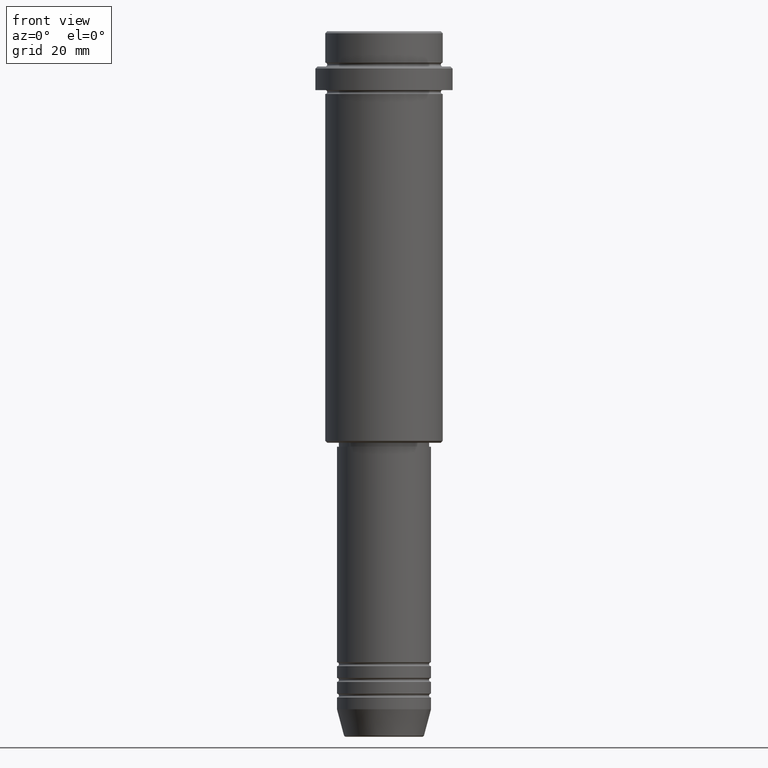
[diagram: clean part render]
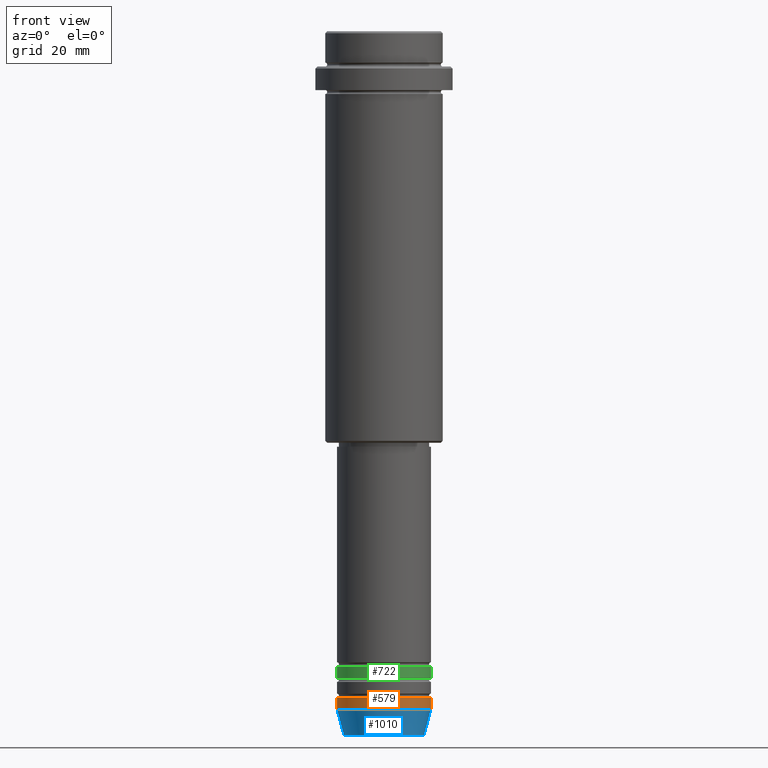
[diagram: same view with three faces highlighted in distinct colors, each labeled with its STEP entity id]
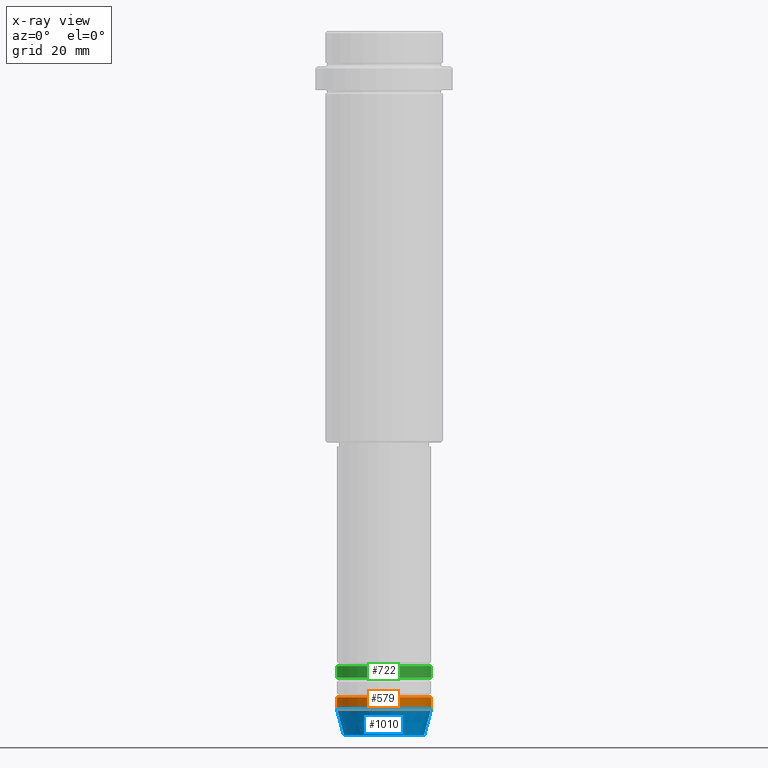
[diagram: x-ray of the same camera — body ghosted, the three highlighted faces saturated]
A machine part, front view with three faces highlighted in distinct colors.
The next image is the same camera in x-ray (body ghosted, the three faces saturated) — at least one of them is partly hidden behind the body in this view.
Their STEP definitions:

[orange] entity #579 — the highlighted cylindrical surface (partial cylindrical patch) has radius 12 mm, axis along (-0, -0, 1).
#37 = DIRECTION ( 'NONE',  ( 1.000000000000000000, 0.000000000000000000, 0.000000000000000000 ) ) ;
#110 = AXIS2_PLACEMENT_3D ( 'NONE', #1078, #1275, #1398 ) ;
#170 = CARTESIAN_POINT ( 'NONE',  ( -12.00000000000000000, 1.469576158976823947E-15, -173.0000000000000284 ) ) ;
#177 = VECTOR ( 'NONE', #1208, 1000.000000000000000 ) ;
#179 = AXIS2_PLACEMENT_3D ( 'NONE', #344, #903, #37 ) ;
#182 = EDGE_CURVE ( 'NONE', #453, #1155, #323, .T. ) ;
#241 = ORIENTED_EDGE ( 'NONE', *, *, #1254, .F. ) ;
#313 = CARTESIAN_POINT ( 'NONE',  ( -12.00000000000000000, 1.469576158976823947E-15, -170.0000000000000000 ) ) ;
#323 = LINE ( 'NONE', #891, #177 ) ;
#325 = EDGE_LOOP ( 'NONE', ( #742, #837, #1383, #241 ) ) ;
#344 = CARTESIAN_POINT ( 'NONE',  ( 0.000000000000000000, 0.000000000000000000, -173.0000000000000284 ) ) ;
#351 = AXIS2_PLACEMENT_3D ( 'NONE', #592, #455, #377 ) ;
#377 = DIRECTION ( 'NONE',  ( 1.000000000000000000, 0.000000000000000000, 0.000000000000000000 ) ) ;
#383 = CARTESIAN_POINT ( 'NONE',  ( -12.00000000000000000, 1.469576158976823947E-15, 0.000000000000000000 ) ) ;
#437 = VERTEX_POINT ( 'NONE', #170 ) ;
#453 = VERTEX_POINT ( 'NONE', #683 ) ;
#455 = DIRECTION ( 'NONE',  ( -0.000000000000000000, -0.000000000000000000, 1.000000000000000000 ) ) ;
#579 = ADVANCED_FACE ( 'NONE', ( #1260 ), #1182, .T. ) ;
#592 = CARTESIAN_POINT ( 'NONE',  ( 0.000000000000000000, 0.000000000000000000, -170.0000000000000000 ) ) ;
#605 = DIRECTION ( 'NONE',  ( -0.000000000000000000, -0.000000000000000000, 1.000000000000000000 ) ) ;
#641 = VECTOR ( 'NONE', #605, 1000.000000000000000 ) ;
#683 = CARTESIAN_POINT ( 'NONE',  ( 12.00000000000000000, 0.000000000000000000, -173.0000000000000284 ) ) ;
#714 = CIRCLE ( 'NONE', #351, 12.00000000000000000 ) ;
#742 = ORIENTED_EDGE ( 'NONE', *, *, #996, .F. ) ;
#774 = EDGE_CURVE ( 'NONE', #437, #453, #1412, .T. ) ;
#837 = ORIENTED_EDGE ( 'NONE', *, *, #774, .T. ) ;
#891 = CARTESIAN_POINT ( 'NONE',  ( 12.00000000000000000, 0.000000000000000000, 0.000000000000000000 ) ) ;
#903 = DIRECTION ( 'NONE',  ( -0.000000000000000000, -0.000000000000000000, 1.000000000000000000 ) ) ;
#928 = LINE ( 'NONE', #383, #641 ) ;
#996 = EDGE_CURVE ( 'NONE', #437, #1050, #928, .T. ) ;
#1050 = VERTEX_POINT ( 'NONE', #313 ) ;
#1078 = CARTESIAN_POINT ( 'NONE',  ( 0.000000000000000000, 0.000000000000000000, 0.000000000000000000 ) ) ;
#1155 = VERTEX_POINT ( 'NONE', #1301 ) ;
#1182 = CYLINDRICAL_SURFACE ( 'NONE', #110, 12.00000000000000000 ) ;
#1208 = DIRECTION ( 'NONE',  ( -0.000000000000000000, -0.000000000000000000, 1.000000000000000000 ) ) ;
#1254 = EDGE_CURVE ( 'NONE', #1050, #1155, #714, .T. ) ;
#1260 = FACE_OUTER_BOUND ( 'NONE', #325, .T. ) ;
#1275 = DIRECTION ( 'NONE',  ( -0.000000000000000000, -0.000000000000000000, 1.000000000000000000 ) ) ;
#1301 = CARTESIAN_POINT ( 'NONE',  ( 12.00000000000000000, 0.000000000000000000, -170.0000000000000000 ) ) ;
#1383 = ORIENTED_EDGE ( 'NONE', *, *, #182, .T. ) ;
#1398 = DIRECTION ( 'NONE',  ( 1.000000000000000000, 0.000000000000000000, 0.000000000000000000 ) ) ;
#1412 = CIRCLE ( 'NONE', #179, 12.00000000000000000 ) ;

[blue] entity #1010 — the highlighted conical surface has half-angle 15 deg.
#37 = DIRECTION ( 'NONE',  ( 1.000000000000000000, 0.000000000000000000, 0.000000000000000000 ) ) ;
#170 = CARTESIAN_POINT ( 'NONE',  ( -12.00000000000000000, 1.469576158976823947E-15, -173.0000000000000284 ) ) ;
#179 = AXIS2_PLACEMENT_3D ( 'NONE', #344, #903, #37 ) ;
#194 = CARTESIAN_POINT ( 'NONE',  ( -12.00000000000000000, 1.469576158976823947E-15, -173.0000000000000284 ) ) ;
#266 = CIRCLE ( 'NONE', #690, 10.22365507213719660 ) ;
#300 = LINE ( 'NONE', #194, #1048 ) ;
#327 = LINE ( 'NONE', #764, #1071 ) ;
#344 = CARTESIAN_POINT ( 'NONE',  ( 0.000000000000000000, 0.000000000000000000, -173.0000000000000284 ) ) ;
#372 = DIRECTION ( 'NONE',  ( -0.000000000000000000, -0.000000000000000000, 1.000000000000000000 ) ) ;
#437 = VERTEX_POINT ( 'NONE', #170 ) ;
#453 = VERTEX_POINT ( 'NONE', #683 ) ;
#470 = AXIS2_PLACEMENT_3D ( 'NONE', #1371, #372, #492 ) ;
#492 = DIRECTION ( 'NONE',  ( 1.000000000000000000, 0.000000000000000000, 0.000000000000000000 ) ) ;
#608 = DIRECTION ( 'NONE',  ( -0.2588190451025213501, 3.169619151431772337E-17, 0.9659258262890680902 ) ) ;
#680 = ORIENTED_EDGE ( 'NONE', *, *, #1114, .T. ) ;
#683 = CARTESIAN_POINT ( 'NONE',  ( 12.00000000000000000, 0.000000000000000000, -173.0000000000000284 ) ) ;
#690 = AXIS2_PLACEMENT_3D ( 'NONE', #1086, #1289, #1196 ) ;
#744 = EDGE_CURVE ( 'NONE', #909, #453, #327, .T. ) ;
#764 = CARTESIAN_POINT ( 'NONE',  ( 12.00000000000000000, 0.000000000000000000, -173.0000000000000284 ) ) ;
#774 = EDGE_CURVE ( 'NONE', #437, #453, #1412, .T. ) ;
#802 = ORIENTED_EDGE ( 'NONE', *, *, #744, .T. ) ;
#903 = DIRECTION ( 'NONE',  ( -0.000000000000000000, -0.000000000000000000, 1.000000000000000000 ) ) ;
#909 = VERTEX_POINT ( 'NONE', #1156 ) ;
#1010 = ADVANCED_FACE ( 'NONE', ( #1169 ), #1344, .T. ) ;
#1045 = VERTEX_POINT ( 'NONE', #1068 ) ;
#1048 = VECTOR ( 'NONE', #608, 1000.000000000000000 ) ;
#1068 = CARTESIAN_POINT ( 'NONE',  ( -10.22365507213719837, 1.360806402472383336E-15, -179.6294095225512706 ) ) ;
#1071 = VECTOR ( 'NONE', #1212, 1000.000000000000000 ) ;
#1086 = CARTESIAN_POINT ( 'NONE',  ( 0.000000000000000000, 0.000000000000000000, -179.6294095225512706 ) ) ;
#1114 = EDGE_CURVE ( 'NONE', #1045, #909, #266, .T. ) ;
#1156 = CARTESIAN_POINT ( 'NONE',  ( 10.22365507213719660, 0.000000000000000000, -179.6294095225512706 ) ) ;
#1169 = FACE_OUTER_BOUND ( 'NONE', #1385, .T. ) ;
#1187 = ORIENTED_EDGE ( 'NONE', *, *, #774, .F. ) ;
#1196 = DIRECTION ( 'NONE',  ( 1.000000000000000000, 0.000000000000000000, 0.000000000000000000 ) ) ;
#1212 = DIRECTION ( 'NONE',  ( 0.2588190451025213501, 0.000000000000000000, 0.9659258262890680902 ) ) ;
#1234 = ORIENTED_EDGE ( 'NONE', *, *, #1408, .F. ) ;
#1289 = DIRECTION ( 'NONE',  ( -0.000000000000000000, -0.000000000000000000, 1.000000000000000000 ) ) ;
#1344 = CONICAL_SURFACE ( 'NONE', #470, 12.00000000000000000, 0.2617993877991500740 ) ;
#1371 = CARTESIAN_POINT ( 'NONE',  ( 0.000000000000000000, 0.000000000000000000, -173.0000000000000284 ) ) ;
#1385 = EDGE_LOOP ( 'NONE', ( #1234, #680, #802, #1187 ) ) ;
#1408 = EDGE_CURVE ( 'NONE', #1045, #437, #300, .T. ) ;
#1412 = CIRCLE ( 'NONE', #179, 12.00000000000000000 ) ;

[green] entity #722 — the highlighted cylindrical surface (partial cylindrical patch) has radius 12 mm, axis along (-0, -0, 1).
#33 = CARTESIAN_POINT ( 'NONE',  ( -12.00000000000000000, 1.469576158976823947E-15, -164.9999999999999147 ) ) ;
#104 = FACE_OUTER_BOUND ( 'NONE', #392, .T. ) ;
#112 = VECTOR ( 'NONE', #1224, 1000.000000000000000 ) ;
#122 = DIRECTION ( 'NONE',  ( -0.000000000000000000, -0.000000000000000000, 1.000000000000000000 ) ) ;
#126 = EDGE_CURVE ( 'NONE', #319, #1051, #236, .T. ) ;
#132 = CIRCLE ( 'NONE', #328, 12.00000000000000000 ) ;
#147 = LINE ( 'NONE', #581, #112 ) ;
#236 = LINE ( 'NONE', #868, #679 ) ;
#245 = AXIS2_PLACEMENT_3D ( 'NONE', #275, #947, #1389 ) ;
#275 = CARTESIAN_POINT ( 'NONE',  ( 0.000000000000000000, 0.000000000000000000, -164.9999999999999147 ) ) ;
#319 = VERTEX_POINT ( 'NONE', #33 ) ;
#328 = AXIS2_PLACEMENT_3D ( 'NONE', #669, #552, #1245 ) ;
#363 = VERTEX_POINT ( 'NONE', #401 ) ;
#392 = EDGE_LOOP ( 'NONE', ( #601, #967, #1278, #1263 ) ) ;
#401 = CARTESIAN_POINT ( 'NONE',  ( 12.00000000000000000, 0.000000000000000000, -161.9999999999999147 ) ) ;
#414 = CYLINDRICAL_SURFACE ( 'NONE', #977, 12.00000000000000000 ) ;
#511 = EDGE_CURVE ( 'NONE', #319, #1247, #615, .T. ) ;
#552 = DIRECTION ( 'NONE',  ( -0.000000000000000000, -0.000000000000000000, 1.000000000000000000 ) ) ;
#581 = CARTESIAN_POINT ( 'NONE',  ( 12.00000000000000000, 0.000000000000000000, 0.000000000000000000 ) ) ;
#601 = ORIENTED_EDGE ( 'NONE', *, *, #126, .F. ) ;
#615 = CIRCLE ( 'NONE', #245, 12.00000000000000000 ) ;
#633 = DIRECTION ( 'NONE',  ( 1.000000000000000000, 0.000000000000000000, 0.000000000000000000 ) ) ;
#669 = CARTESIAN_POINT ( 'NONE',  ( 0.000000000000000000, 0.000000000000000000, -161.9999999999999147 ) ) ;
#679 = VECTOR ( 'NONE', #122, 1000.000000000000000 ) ;
#722 = ADVANCED_FACE ( 'NONE', ( #104 ), #414, .T. ) ;
#776 = EDGE_CURVE ( 'NONE', #1247, #363, #147, .T. ) ;
#862 = CARTESIAN_POINT ( 'NONE',  ( -12.00000000000000000, 1.469576158976823947E-15, -161.9999999999999147 ) ) ;
#868 = CARTESIAN_POINT ( 'NONE',  ( -12.00000000000000000, 1.469576158976823947E-15, 0.000000000000000000 ) ) ;
#890 = EDGE_CURVE ( 'NONE', #1051, #363, #132, .T. ) ;
#947 = DIRECTION ( 'NONE',  ( -0.000000000000000000, -0.000000000000000000, 1.000000000000000000 ) ) ;
#967 = ORIENTED_EDGE ( 'NONE', *, *, #511, .T. ) ;
#977 = AXIS2_PLACEMENT_3D ( 'NONE', #1188, #1315, #633 ) ;
#1051 = VERTEX_POINT ( 'NONE', #862 ) ;
#1144 = CARTESIAN_POINT ( 'NONE',  ( 12.00000000000000000, 0.000000000000000000, -164.9999999999999147 ) ) ;
#1188 = CARTESIAN_POINT ( 'NONE',  ( 0.000000000000000000, 0.000000000000000000, 0.000000000000000000 ) ) ;
#1224 = DIRECTION ( 'NONE',  ( -0.000000000000000000, -0.000000000000000000, 1.000000000000000000 ) ) ;
#1245 = DIRECTION ( 'NONE',  ( 1.000000000000000000, 0.000000000000000000, 0.000000000000000000 ) ) ;
#1247 = VERTEX_POINT ( 'NONE', #1144 ) ;
#1263 = ORIENTED_EDGE ( 'NONE', *, *, #890, .F. ) ;
#1278 = ORIENTED_EDGE ( 'NONE', *, *, #776, .T. ) ;
#1315 = DIRECTION ( 'NONE',  ( -0.000000000000000000, -0.000000000000000000, 1.000000000000000000 ) ) ;
#1389 = DIRECTION ( 'NONE',  ( 1.000000000000000000, 0.000000000000000000, 0.000000000000000000 ) ) ;